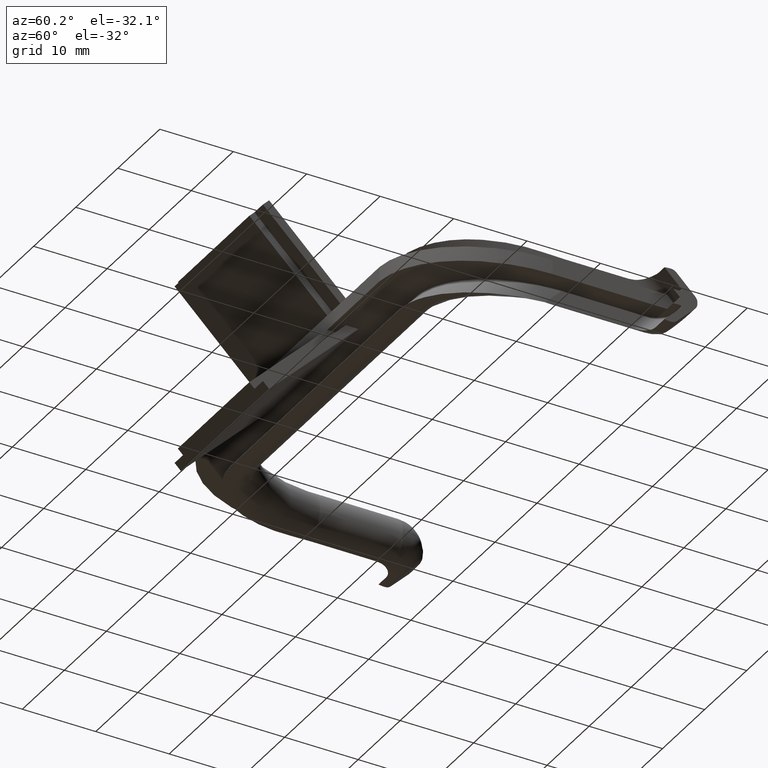
[diagram: clean part render]
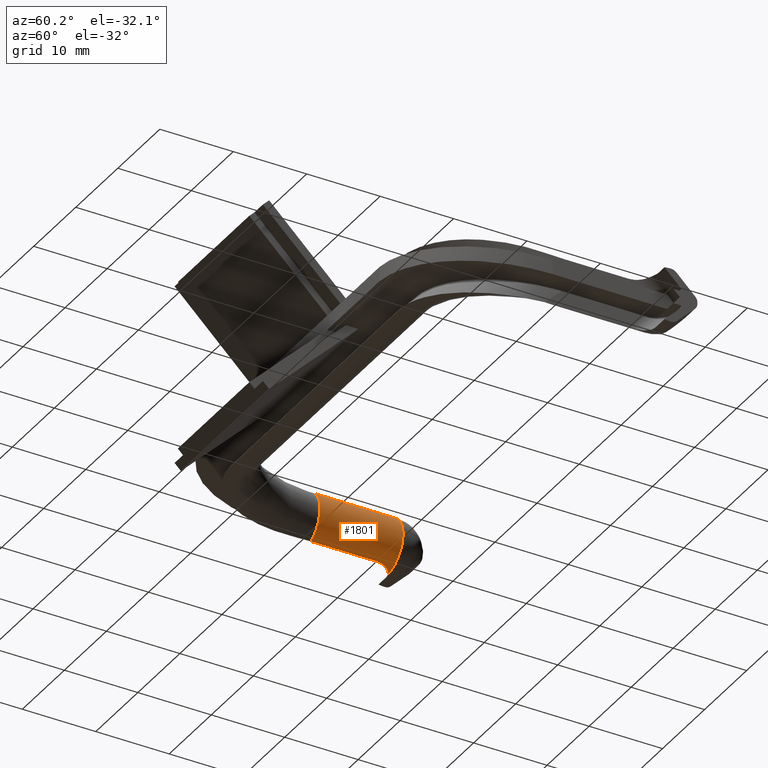
[diagram: same view with one face highlighted and labeled with its STEP entity id]
A machine part, auxiliary view. The second image highlights one B-rep face of the part: STEP entity #1801.
In plain terms, the highlighted cylindrical surface (edge-blend (fillet) strip) has radius 3.7 mm, axis along (-0, -1, 0).
Its self-contained STEP definition (entity closure, byte-faithful):
#29=B_SPLINE_CURVE_WITH_KNOTS('',3,(#3234,#3235,#3236,#3237,#3238,#3239,
#3240,#3241,#3242,#3243),.UNSPECIFIED.,.F.,.F.,(4,2,2,2,4),(0.839209680100944,
0.93546842491862,1.0317271697363,1.11435074002428,1.12222859560255),
 .UNSPECIFIED.);
#43=B_SPLINE_CURVE_WITH_KNOTS('',3,(#3606,#3607,#3608,#3609,#3610,#3611,
#3612,#3613,#3614,#3615),.UNSPECIFIED.,.F.,.F.,(4,2,2,2,4),(0.380122602894657,
0.382081741606437,0.455268498951634,0.559649971796836,0.664031444642038),
 .UNSPECIFIED.);
#208=FACE_OUTER_BOUND('',#312,.T.);
#312=EDGE_LOOP('',(#1536,#1537,#1538,#1539,#1540,#1541));
#427=LINE('',#3219,#583);
#451=LINE('',#3625,#607);
#583=VECTOR('',#2273,10.);
#607=VECTOR('',#2373,10.);
#708=CIRCLE('',#1968,3.7);
#712=CIRCLE('',#1989,3.7);
#827=VERTEX_POINT('',#3216);
#828=VERTEX_POINT('',#3218);
#830=VERTEX_POINT('',#3227);
#850=VERTEX_POINT('',#3522);
#854=VERTEX_POINT('',#3604);
#856=VERTEX_POINT('',#3620);
#1031=EDGE_CURVE('',#828,#827,#427,.T.);
#1035=EDGE_CURVE('',#827,#830,#29,.T.);
#1073=EDGE_CURVE('',#850,#830,#708,.T.);
#1085=EDGE_CURVE('',#850,#854,#43,.T.);
#1089=EDGE_CURVE('',#854,#856,#451,.T.);
#1102=EDGE_CURVE('',#856,#828,#712,.T.);
#1536=ORIENTED_EDGE('',*,*,#1085,.T.);
#1537=ORIENTED_EDGE('',*,*,#1089,.T.);
#1538=ORIENTED_EDGE('',*,*,#1102,.T.);
#1539=ORIENTED_EDGE('',*,*,#1031,.T.);
#1540=ORIENTED_EDGE('',*,*,#1035,.T.);
#1541=ORIENTED_EDGE('',*,*,#1073,.F.);
#1728=CYLINDRICAL_SURFACE('',#1988,3.7);
#1801=ADVANCED_FACE('',(#208),#1728,.T.);
#1968=AXIS2_PLACEMENT_3D('',#3529,#2337,#2338);
#1988=AXIS2_PLACEMENT_3D('',#3725,#2392,#2393);
#1989=AXIS2_PLACEMENT_3D('',#3726,#2394,#2395);
#2273=DIRECTION('',(2.55140024536116E-15,1.,0.));
#2337=DIRECTION('center_axis',(0.,1.,-2.77555756156289E-16));
#2338=DIRECTION('ref_axis',(-0.270270270270257,2.67226378121049E-16,0.962784493543619));
#2373=DIRECTION('',(-2.55140024536116E-15,-1.,0.));
#2392=DIRECTION('center_axis',(-2.55140024536116E-15,-1.,0.));
#2393=DIRECTION('ref_axis',(1.,-2.55140024536116E-15,4.87597950004292E-16));
#2394=DIRECTION('center_axis',(0.,1.,-2.77555756156289E-16));
#2395=DIRECTION('ref_axis',(-0.270270270270257,2.67226378121049E-16,0.962784493543619));
#3216=CARTESIAN_POINT('',(3.99999999999994,28.7303914671506,-3.38230690505755));
#3218=CARTESIAN_POINT('',(3.99999999999992,19.7989898732234,-3.38230690505755));
#3219=CARTESIAN_POINT('',(3.99999999999995,31.1126983722081,-3.38230690505755));
#3227=CARTESIAN_POINT('',(2.59879993892491,31.1126983722081,-3.69868065289076));
#3234=CARTESIAN_POINT('Ctrl Pts',(3.99999999999994,28.7303914671506,-3.38230690505755));
#3235=CARTESIAN_POINT('Ctrl Pts',(3.99999999999994,29.0512539498761,-3.38230690505755));
#3236=CARTESIAN_POINT('Ctrl Pts',(3.95943452438519,29.3995922169842,-3.40180541835638));
#3237=CARTESIAN_POINT('Ctrl Pts',(3.7536692879417,30.0448460090465,-3.48289266533383));
#3238=CARTESIAN_POINT('Ctrl Pts',(3.58620968860272,30.3411227146846,-3.54381191752518));
#3239=CARTESIAN_POINT('Ctrl Pts',(3.18867377582979,30.7749519779118,-3.64025106446826));
#3240=CARTESIAN_POINT('Ctrl Pts',(2.92254015730124,30.9658911647357,-3.68431458564003));
#3241=CARTESIAN_POINT('Ctrl Pts',(2.64853270707034,31.0914389043475,-3.69709455716525));
#3242=CARTESIAN_POINT('Ctrl Pts',(2.62396208999046,31.1022042417824,-3.69800851619614));
#3243=CARTESIAN_POINT('Ctrl Pts',(2.59879993892491,31.1126983722081,-3.69868065289076));
#3522=CARTESIAN_POINT('',(2.5987999389249,31.1126983722081,3.69868065289076));
#3529=CARTESIAN_POINT('Origin',(2.49999999999994,31.1126983722081,0.));
#3604=CARTESIAN_POINT('',(3.99999999999994,28.7303914671506,3.38230690505755));
#3606=CARTESIAN_POINT('Ctrl Pts',(2.5987999389249,31.1126983722081,3.69868065289076));
#3607=CARTESIAN_POINT('Ctrl Pts',(2.60489551917057,31.110156148614,3.69851782646358));
#3608=CARTESIAN_POINT('Ctrl Pts',(2.61094614716912,31.1076023727047,3.69834111846174));
#3609=CARTESIAN_POINT('Ctrl Pts',(2.84121366445036,31.009280245851,3.69105919162948));
#3610=CARTESIAN_POINT('Ctrl Pts',(3.08574073048949,30.8518059834547,3.65775462935475));
#3611=CARTESIAN_POINT('Ctrl Pts',(3.51219640687378,30.4512690787633,3.56806421500662));
#3612=CARTESIAN_POINT('Ctrl Pts',(3.70962835722657,30.1419928862994,3.49909904005527));
#3613=CARTESIAN_POINT('Ctrl Pts',(3.95219612906099,29.4551366074884,3.40558707911512));
#3614=CARTESIAN_POINT('Ctrl Pts',(3.99999999999994,29.0783297099679,3.38230690505755));
#3615=CARTESIAN_POINT('Ctrl Pts',(3.99999999999994,28.7303914671506,3.38230690505755));
#3620=CARTESIAN_POINT('',(3.99999999999992,19.7989898732234,3.38230690505755));
#3625=CARTESIAN_POINT('',(3.99999999999995,31.1126983722081,3.38230690505755));
#3725=CARTESIAN_POINT('Origin',(2.49999999999994,31.1126983722081,0.));
#3726=CARTESIAN_POINT('Origin',(2.49999999999991,19.7989898732235,0.));